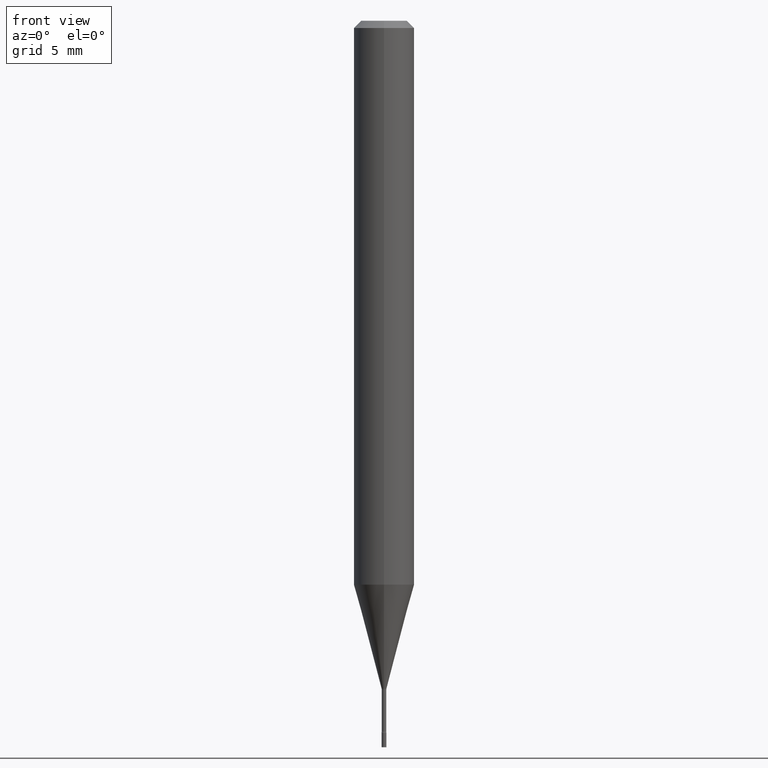
[diagram: clean part render]
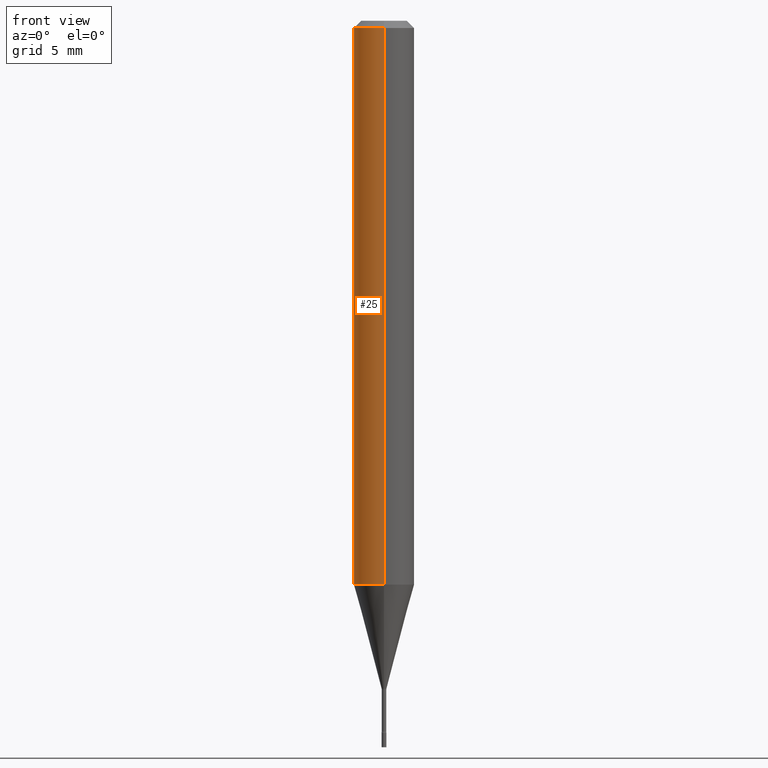
[diagram: same view with one face highlighted and labeled with its STEP entity id]
A machine part, front view. The second image highlights one B-rep face of the part: STEP entity #25.
In plain terms, the highlighted cylindrical surface (edge-blend (fillet) strip) has radius 1.5875 mm, axis along (-0, 0, 1).
Its self-contained STEP definition (entity closure, byte-faithful):
#6 = CARTESIAN_POINT ( 'NONE',  ( 3.665223815105752265E-31, -5.241488670295561103E-17, -0.01500000000000003067 ) ) ;
#11 = CARTESIAN_POINT ( 'NONE',  ( 2.844916092132503217E-29, -4.068399698648086919E-15, -1.164287463322519312 ) ) ;
#18 = CARTESIAN_POINT ( 'NONE',  ( -4.364351673553916201E-16, -0.06250000000000000000, 2.183953612623145683E-16 ) ) ;
#25 = ADVANCED_FACE ( 'NONE', ( #378 ), #262, .T. ) ;
#38 = CARTESIAN_POINT ( 'NONE',  ( 4.440892098500912124E-16, 0.06249999999999995143, -0.01500000000000024751 ) ) ;
#107 = CARTESIAN_POINT ( 'NONE',  ( -4.364351673553632704E-16, -0.06250000000000409395, -1.164287463322519089 ) ) ;
#118 = ORIENTED_EDGE ( 'NONE', *, *, #338, .F. ) ;
#158 = VERTEX_POINT ( 'NONE', #282 ) ;
#160 = EDGE_LOOP ( 'NONE', ( #118, #450, #285, #390 ) ) ;
#190 = VERTEX_POINT ( 'NONE', #107 ) ;
#199 = VERTEX_POINT ( 'NONE', #38 ) ;
#212 = VECTOR ( 'NONE', #426, 39.37007874015748143 ) ;
#232 = CIRCLE ( 'NONE', #379, 0.06250000000000000000 ) ;
#234 = EDGE_CURVE ( 'NONE', #199, #158, #496, .T. ) ;
#259 = DIRECTION ( 'NONE',  ( -2.443482543403829974E-29, 3.494325780197033093E-15, 1.000000000000000000 ) ) ;
#262 = CYLINDRICAL_SURFACE ( 'NONE', #402, 0.06250000000000000000 ) ;
#282 = CARTESIAN_POINT ( 'NONE',  ( -4.364351673553912750E-16, -0.06250000000000005551, -0.01499999999999981209 ) ) ;
#285 = ORIENTED_EDGE ( 'NONE', *, *, #479, .T. ) ;
#289 = CARTESIAN_POINT ( 'NONE',  ( 4.440892098500625669E-16, 0.06250000000000000000, -2.183953612623145683E-16 ) ) ;
#307 = DIRECTION ( 'NONE',  ( -6.982962677686265922E-15, -1.000000000000000000, 3.483106191921935554E-15 ) ) ;
#329 = DIRECTION ( 'NONE',  ( -6.982962677686265922E-15, -1.000000000000000000, 4.370956789862821150E-15 ) ) ;
#338 = EDGE_CURVE ( 'NONE', #406, #199, #485, .T. ) ;
#339 = DIRECTION ( 'NONE',  ( -2.443482543403829974E-29, 3.494325780197033487E-15, 1.000000000000000000 ) ) ;
#349 = DIRECTION ( 'NONE',  ( -6.982962677686265922E-15, -1.000000000000000000, 3.494325780197033093E-15 ) ) ;
#364 = DIRECTION ( 'NONE',  ( -2.443482543403829974E-29, 3.494325780197033093E-15, 1.000000000000000000 ) ) ;
#378 = FACE_OUTER_BOUND ( 'NONE', #160, .T. ) ;
#379 = AXIS2_PLACEMENT_3D ( 'NONE', #11, #499, #329 ) ;
#380 = LINE ( 'NONE', #18, #481 ) ;
#390 = ORIENTED_EDGE ( 'NONE', *, *, #234, .F. ) ;
#392 = EDGE_CURVE ( 'NONE', #406, #190, #232, .T. ) ;
#402 = AXIS2_PLACEMENT_3D ( 'NONE', #421, #259, #349 ) ;
#406 = VERTEX_POINT ( 'NONE', #461 ) ;
#421 = CARTESIAN_POINT ( 'NONE',  ( 0.000000000000000000, 0.000000000000000000, 0.000000000000000000 ) ) ;
#426 = DIRECTION ( 'NONE',  ( -2.443482543403829974E-29, 3.494325780197033487E-15, 1.000000000000000000 ) ) ;
#439 = AXIS2_PLACEMENT_3D ( 'NONE', #6, #364, #307 ) ;
#450 = ORIENTED_EDGE ( 'NONE', *, *, #392, .T. ) ;
#461 = CARTESIAN_POINT ( 'NONE',  ( 4.440892098500909166E-16, 0.06249999999999592687, -1.164287463322519756 ) ) ;
#479 = EDGE_CURVE ( 'NONE', #190, #158, #380, .T. ) ;
#481 = VECTOR ( 'NONE', #339, 39.37007874015748143 ) ;
#485 = LINE ( 'NONE', #289, #212 ) ;
#496 = CIRCLE ( 'NONE', #439, 0.06250000000000000000 ) ;
#499 = DIRECTION ( 'NONE',  ( -2.443482543403829974E-29, 3.494325780197033093E-15, 1.000000000000000000 ) ) ;